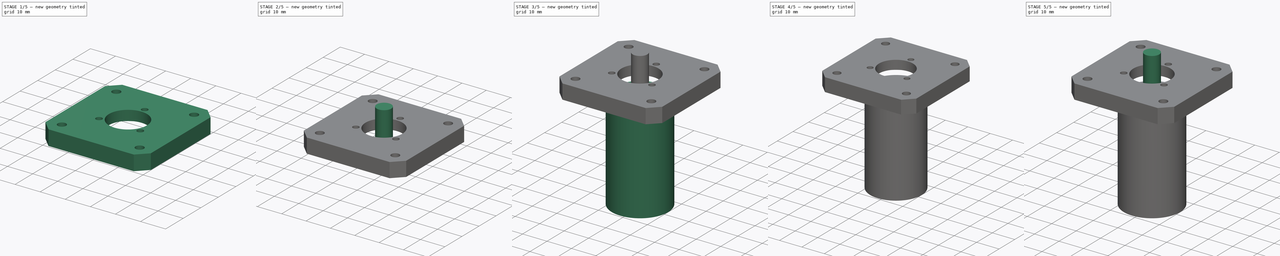
[diagram: build sequence overview — one tinted view per stage of 5, left to right]
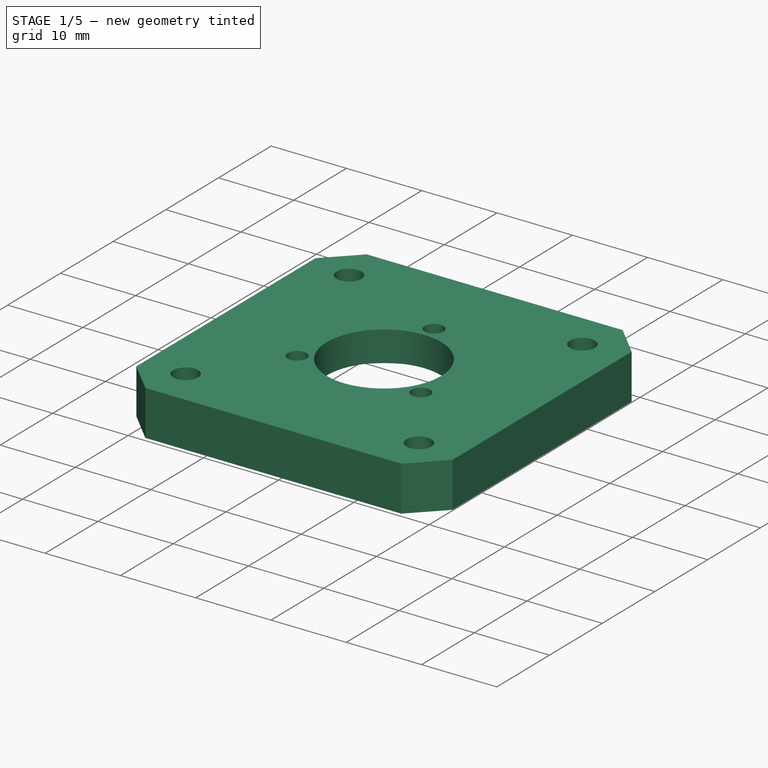
[diagram: stage 1 of 5 — iso view after this stage's code; geometry added in this stage tinted green]
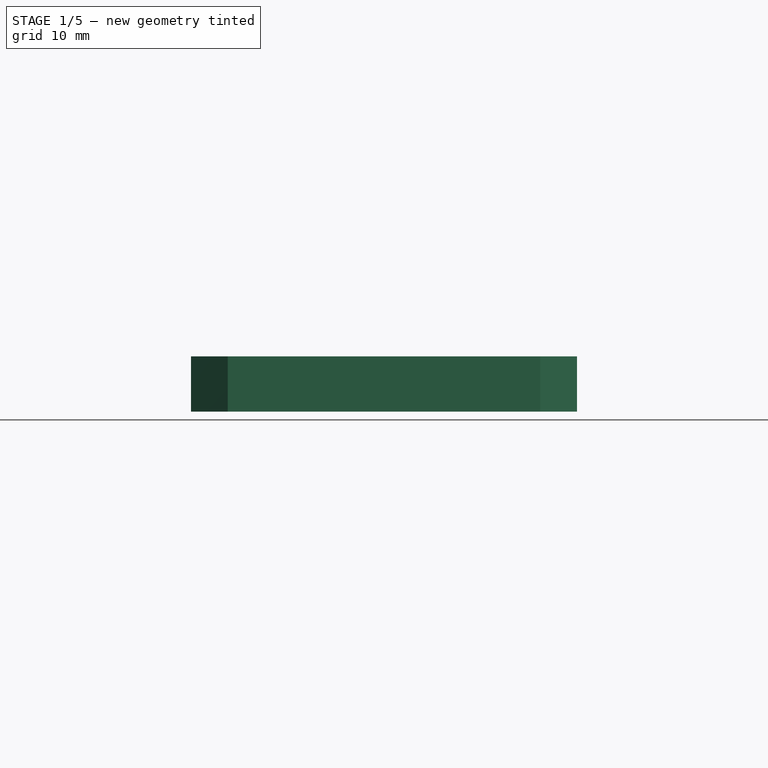
[diagram: stage 1 of 5 — front view after this stage's code; geometry added in this stage tinted green]
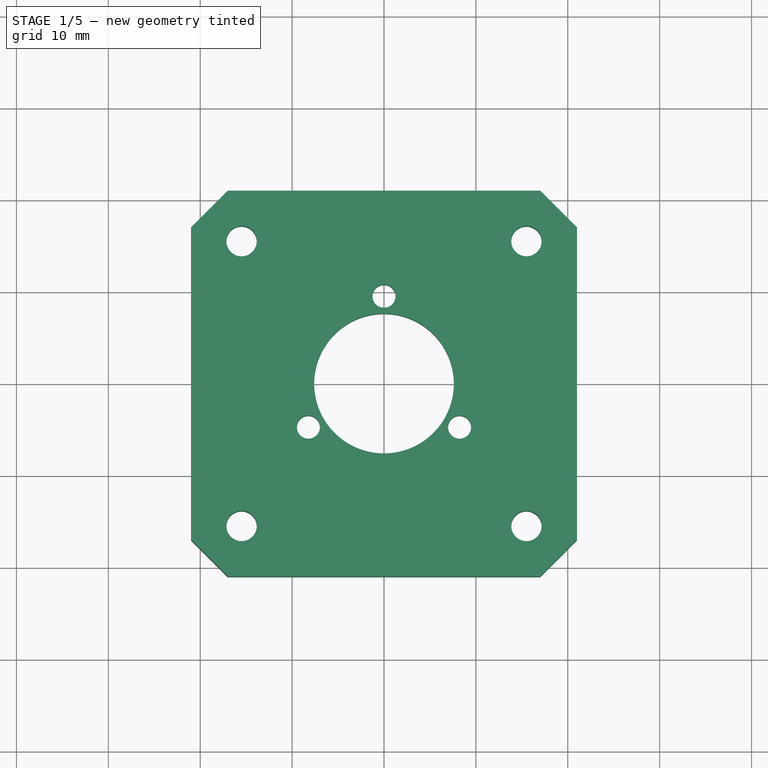
[diagram: stage 1 of 5 — top view after this stage's code; geometry added in this stage tinted green]
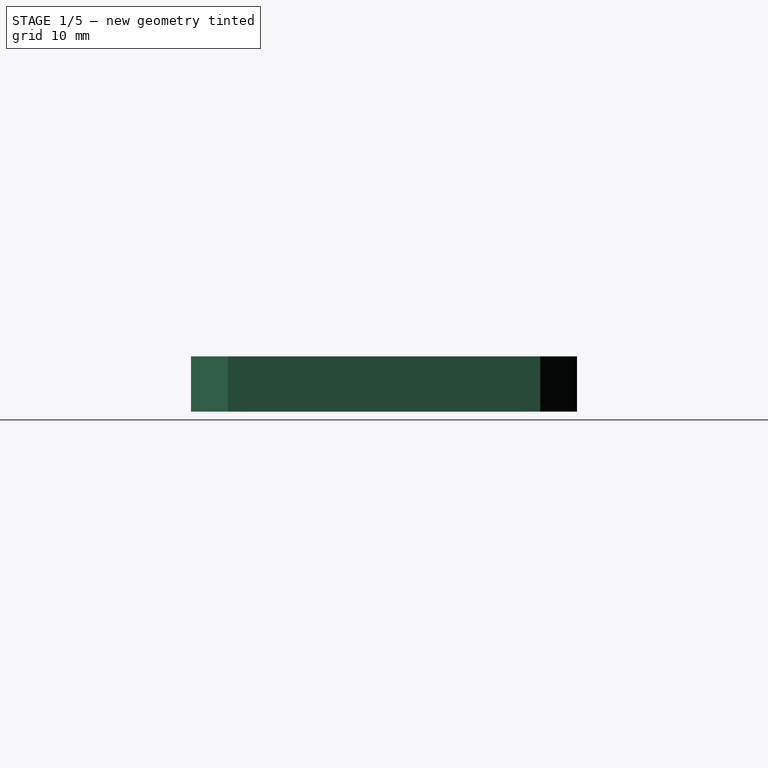
[diagram: stage 1 of 5 — right view after this stage's code; geometry added in this stage tinted green]
FCSTD DOCUMENT  (FreeCAD 0.16R6692 (Git))
Label: faulhaber
License: All rights reserved
LicenseURL: http://en.wikipedia.org/wiki/All_rights_reserved
objects: Sketcher::SketchObject×5, Part::Cylinder×3, PartDesign::Pocket×3, Part::FeaturePython×3, Part::Extrusion×2, Part::MultiFuse×1, Part::MultiCommon×1, Part::Cut×1, Part::Compound×1, Part::Feature×1
note: 24 computed .brp shape members not serialized (recipe doc carries the construction recipe); baked Part::Feature solids carry a one-line shape summary decoded from their .brp

FEATURE [Part::Feature] Compound001  label="Faulhaber"
  Placement = pos=(-3.72e-10,-3.7e-11,0) rot=(0,0,1;0rad)
  shape: bbox 23 x 23 x 56 mm, 14 faces, 2 solids (baked)
FEATURE [Part::FeaturePython] Clone057  label="Clone of SIRIUS_lite_remake040"  # WARN: FeaturePython — macro-defined, semantics opaque (R4)
  Placement = pos=(0,-257.5,235) rot=(-1,0,0;1.5708rad)
  Scale = (1,1,1)
FEATURE [Sketcher::SketchObject] Sketch002
  ExternalGeometry = -> [Clone057]
  Placement = pos=(0,-257.5,260.941) rot=(0,1,0;3.14159rad)
  Support = -> Clone057 [Face28]
  sketch-geometry (20):
    g0: Circle CenterX=279.912 CenterY=243.266 CenterZ=0 NormalX=0 NormalY=0 NormalZ=1 Radius=1.65
    g1: Circle CenterX=310.912 CenterY=243.266 CenterZ=0 NormalX=0 NormalY=0 NormalZ=1 Radius=1.65
    g2: Circle CenterX=310.912 CenterY=212.266 CenterZ=0 NormalX=0 NormalY=0 NormalZ=1 Radius=1.65
    g3: Circle CenterX=279.912 CenterY=212.266 CenterZ=0 NormalX=0 NormalY=0 NormalZ=1 Radius=1.65
    g4: Circle [constr] CenterX=295.412 CenterY=227.766 CenterZ=0 NormalX=0 NormalY=0 NormalZ=1 Radius=9.5
    g5: LineSegment [constr] StartX=295.412 StartY=227.766 StartZ=0 EndX=295.412 EndY=237.266 EndZ=0
    g6: LineSegment [constr] StartX=295.412 StartY=227.766 StartZ=0 EndX=287.185 EndY=223.016 EndZ=0
    g7: LineSegment [constr] StartX=295.412 StartY=227.766 StartZ=0 EndX=303.639 EndY=223.016 EndZ=0
    g8: Circle CenterX=295.412 CenterY=237.266 CenterZ=0 NormalX=0 NormalY=0 NormalZ=1 Radius=1.25
    g9: Circle CenterX=303.639 CenterY=223.016 CenterZ=0 NormalX=0 NormalY=0 NormalZ=1 Radius=1.25
    g10: Circle CenterX=287.185 CenterY=223.016 CenterZ=0 NormalX=0 NormalY=0 NormalZ=1 Radius=1.25
    g11: LineSegment StartX=278.412 StartY=248.766 StartZ=0 EndX=312.412 EndY=248.766 EndZ=0
    g12: LineSegment StartX=312.412 StartY=248.766 StartZ=0 EndX=316.412 EndY=244.766 EndZ=0
    g13: LineSegment StartX=316.412 StartY=244.766 StartZ=0 EndX=316.412 EndY=210.766 EndZ=0
    g14: LineSegment StartX=316.412 StartY=210.766 StartZ=0 EndX=312.412 EndY=206.766 EndZ=0
    g15: LineSegment StartX=312.412 StartY=206.766 StartZ=0 EndX=278.412 EndY=206.766 EndZ=0
    g16: LineSegment StartX=278.412 StartY=206.766 StartZ=0 EndX=274.412 EndY=210.766 EndZ=0
    g17: LineSegment StartX=274.412 StartY=210.766 StartZ=0 EndX=274.412 EndY=244.766 EndZ=0
    g18: LineSegment StartX=278.412 StartY=248.766 StartZ=0 EndX=274.412 EndY=244.766 EndZ=0
    g19: Circle CenterX=295.412 CenterY=227.766 CenterZ=0 NormalX=0 NormalY=0 NormalZ=1 Radius=7.6
  constraints (45):
    c: Coincident(g0,g-4)
    c: Coincident(g1,g-3)
    c: Coincident(g2,g-6)
    c: Coincident(g3,g-5)
    c: Radius(g3) = 1.65
    c: Equal(g3,g0)
    c: Equal(g3,g1)
    c: Equal(g3,g2)
    c: Coincident(g4,g-7)
    c: Coincident(g5,g4)
    c: PointOnObject(g5,g4)
    c: Coincident(g6,g4)
    c: PointOnObject(g6,g4)
    c: Coincident(g7,g4)
    c: PointOnObject(g7,g4)
    c: Radius(g4) = 9.5
    c: Coincident(g8,g5)
    c: Coincident(g9,g7)
    c: Coincident(g10,g6)
    c: Angle(g4,g6) = 1.0472
    c: Angle(g4,g7) = 1.0472
    c: Coincident(g-8,g11)
    c: Coincident(g11,g-10)
    c: Coincident(g11,g12)
    c: Coincident(g12,g-10)
    c: Coincident(g12,g13)
    c: Coincident(g13,g-9)
    c: Coincident(g13,g14)
    c: Coincident(g14,g-9)
    c: Coincident(g14,g15)
    c: Coincident(g15,g-11)
    c: Coincident(g15,g16)
    c: Coincident(g16,g-11)
    c: Coincident(g16,g17)
    c: Coincident(g17,g-8)
    c: Coincident(g18,g11)
    c: Coincident(g18,g17)
    c: Vertical(g5)
    c: Angle(g5,g6) = 2.0944
    c: Angle(g7,g5) = 2.0944
    c: Radius(g10) = 1.25
    c: Equal(g10,g8)
    c: Equal(g10,g9)
    c: Coincident(g19,g4)
    c: Radius(g19) = 7.6
FEATURE [Part::Extrusion] Extrude001
  Base = -> Sketch002
  Dir = (0,0,6)
  Placement = pos=(295.412,29.7342,-218) rot=(0,0,1;0rad)
  Solid = true
FEATURE [Sketcher::SketchObject] Sketch003
  ExternalGeometry = -> [Extrude001]
  Placement = pos=(295.412,29.7342,42.9412) rot=(1,0,0;3.14159rad)
  Support = -> Extrude001 [Face17]
  sketch-geometry (1):
    g0: Circle CenterX=-295.412 CenterY=29.7342 CenterZ=0 NormalX=0 NormalY=0 NormalZ=1 Radius=11.8
  constraints (2):
    c: Coincident(g0,g-3)
    c: Radius(g0) = 11.8
FEATURE [PartDesign::Pocket] Pocket001
  Length = 2
  Placement = pos=(295.412,29.7342,-218) rot=(0,0,1;0rad)
  Sketch = -> Sketch003
  Type = 0
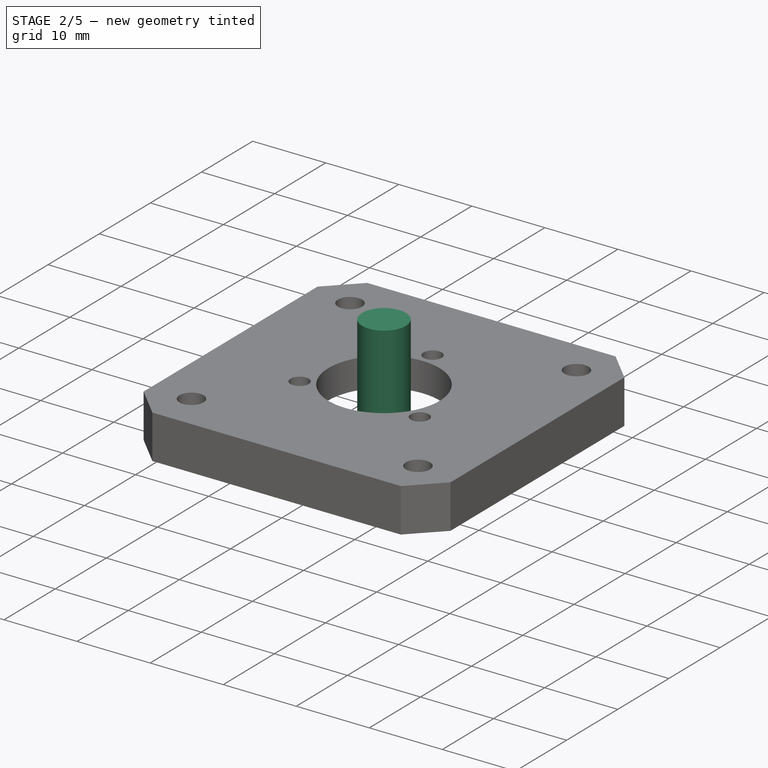
[diagram: stage 2 of 5 — iso view after this stage's code; geometry added in this stage tinted green]
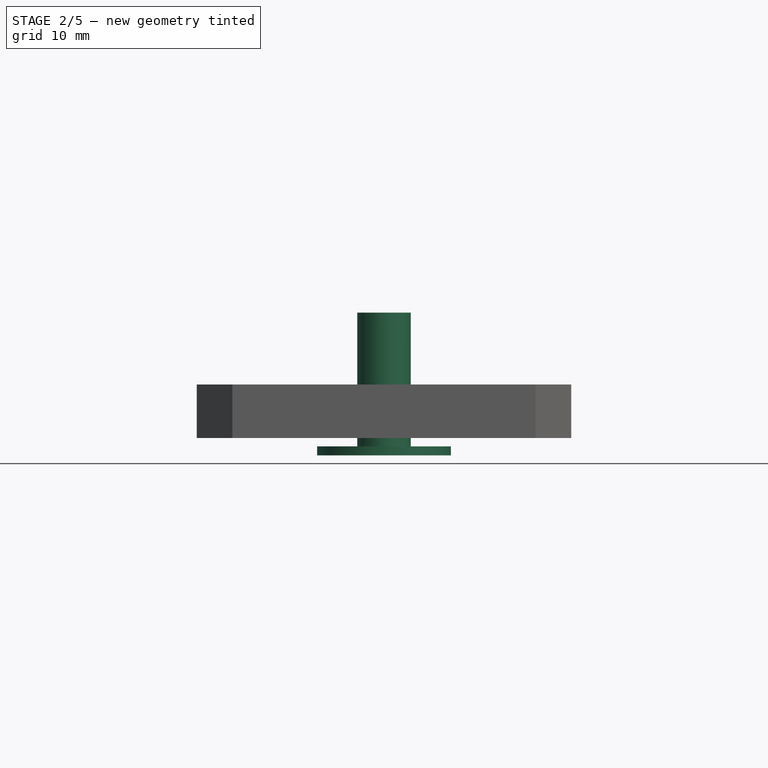
[diagram: stage 2 of 5 — front view after this stage's code; geometry added in this stage tinted green]
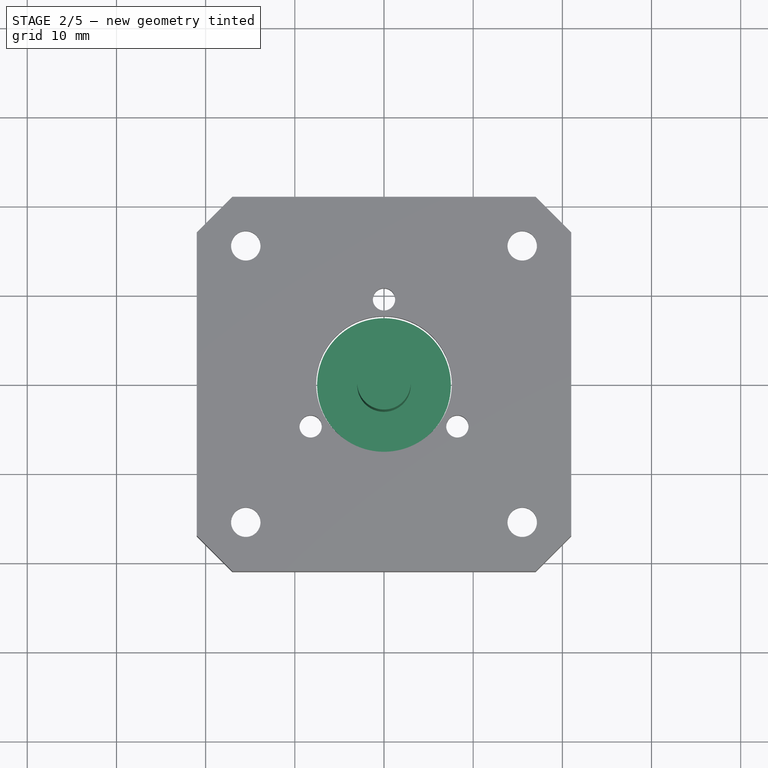
[diagram: stage 2 of 5 — top view after this stage's code; geometry added in this stage tinted green]
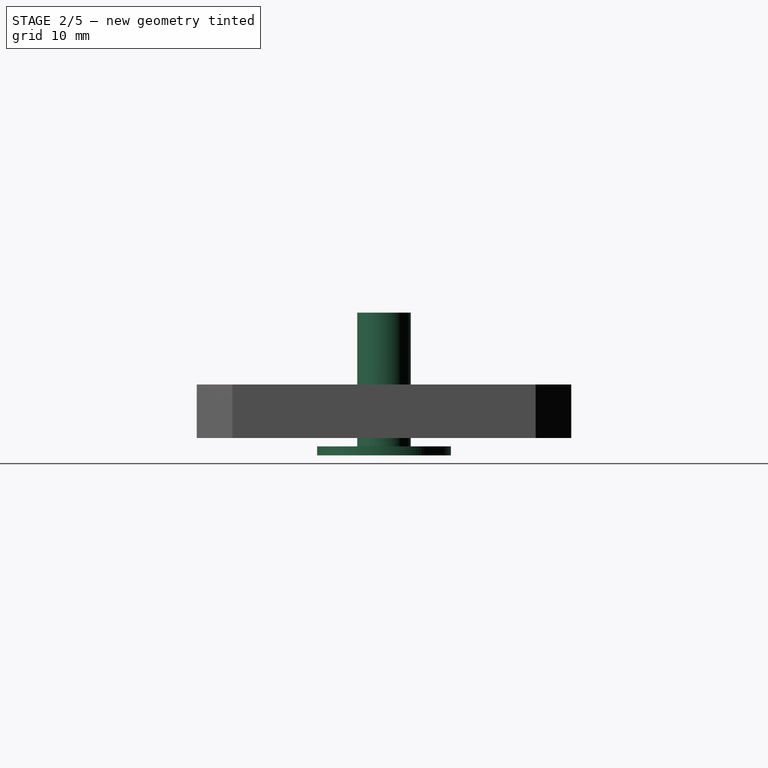
[diagram: stage 2 of 5 — right view after this stage's code; geometry added in this stage tinted green]
FEATURE [Part::Cylinder] Cylinder001
  Angle = 360
  Height = 1
  Placement = pos=(0,0,41) rot=(0,0,1;0rad)
  Radius = 7.5
FEATURE [Part::Cylinder] Cylinder002
  Angle = 360
  Height = 15
  Placement = pos=(0,0,42) rot=(0,0,1;0rad)
  Radius = 3
FEATURE [Sketcher::SketchObject] Sketch004
  ExternalGeometry = -> [Pocket001]
  Placement = pos=(295.412,29.7342,42.9412) rot=(1,0,0;3.14159rad)
  Support = -> Pocket001 [Face4]
  sketch-geometry (28):
    g0: LineSegment StartX=-313.812 StartY=43.5598 StartZ=0 EndX=-310.912 EndY=41.8855 EndZ=0
    g1: LineSegment StartX=-310.912 StartY=41.8855 StartZ=0 EndX=-308.012 EndY=43.5598 EndZ=0
    g2: LineSegment StartX=-308.012 StartY=43.5598 StartZ=0 EndX=-308.012 EndY=46.9085 EndZ=0
    g3: LineSegment StartX=-308.012 StartY=46.9085 StartZ=0 EndX=-310.912 EndY=48.5828 EndZ=0
    g4: LineSegment StartX=-310.912 StartY=48.5828 StartZ=0 EndX=-313.812 EndY=46.9085 EndZ=0
    g5: LineSegment StartX=-313.812 StartY=46.9085 StartZ=0 EndX=-313.812 EndY=43.5598 EndZ=0
    g6: Circle [constr] CenterX=-310.912 CenterY=45.2342 CenterZ=0 NormalX=0 NormalY=0 NormalZ=1 Radius=3.34863
    g7: LineSegment StartX=-279.912 StartY=41.8855 StartZ=0 EndX=-277.012 EndY=43.5598 EndZ=0
    g8: LineSegment StartX=-277.012 StartY=43.5598 StartZ=0 EndX=-277.012 EndY=46.9085 EndZ=0
    g9: LineSegment StartX=-277.012 StartY=46.9085 StartZ=0 EndX=-279.912 EndY=48.5828 EndZ=0
    g10: LineSegment StartX=-279.912 StartY=48.5828 StartZ=0 EndX=-282.812 EndY=46.9085 EndZ=0
    g11: LineSegment StartX=-282.812 StartY=46.9085 StartZ=0 EndX=-282.812 EndY=43.5598 EndZ=0
    g12: LineSegment StartX=-282.812 StartY=43.5598 StartZ=0 EndX=-279.912 EndY=41.8855 EndZ=0
    g13: Circle [constr] CenterX=-279.912 CenterY=45.2342 CenterZ=0 NormalX=0 NormalY=0 NormalZ=1 Radius=3.34863
    g14: LineSegment StartX=-279.912 StartY=17.5828 StartZ=0 EndX=-282.812 EndY=15.9085 EndZ=0
    g15: LineSegment StartX=-282.812 StartY=15.9085 StartZ=0 EndX=-282.812 EndY=12.5598 EndZ=0
    g16: LineSegment StartX=-282.812 StartY=12.5598 StartZ=0 EndX=-279.912 EndY=10.8855 EndZ=0
    g17: LineSegment StartX=-279.912 StartY=10.8855 StartZ=0 EndX=-277.012 EndY=12.5598 EndZ=0
    g18: LineSegment StartX=-277.012 StartY=12.5598 StartZ=0 EndX=-277.012 EndY=15.9085 EndZ=0
    g19: LineSegment StartX=-277.012 StartY=15.9085 StartZ=0 EndX=-279.912 EndY=17.5828 EndZ=0
    g20: Circle [constr] CenterX=-279.912 CenterY=14.2342 CenterZ=0 NormalX=0 NormalY=0 NormalZ=1 Radius=3.34863
    g21: LineSegment StartX=-310.912 StartY=17.5828 StartZ=0 EndX=-313.812 EndY=15.9085 EndZ=0
    g22: LineSegment StartX=-313.812 StartY=15.9085 StartZ=0 EndX=-313.812 EndY=12.5598 EndZ=0
    g23: LineSegment StartX=-313.812 StartY=12.5598 StartZ=0 EndX=-310.912 EndY=10.8855 EndZ=0
    g24: LineSegment StartX=-310.912 StartY=10.8855 StartZ=0 EndX=-308.012 EndY=12.5598 EndZ=0
    g25: LineSegment StartX=-308.012 StartY=12.5598 StartZ=0 EndX=-308.012 EndY=15.9085 EndZ=0
    g26: LineSegment StartX=-308.012 StartY=15.9085 StartZ=0 EndX=-310.912 EndY=17.5828 EndZ=0
    g27: Circle [constr] CenterX=-310.912 CenterY=14.2342 CenterZ=0 NormalX=0 NormalY=0 NormalZ=1 Radius=3.34863
  constraints (64):
    c: Coincident(g0,g1)
    c: Coincident(g1,g2)
    c: Coincident(g2,g3)
    c: Coincident(g3,g4)
    c: Coincident(g4,g5)
    c: Coincident(g5,g0)
    c: Equal(g0, g1-g5) x5
    c: PointOnObject(g0,g6)
    c: PointOnObject(g1,g6)
    c: PointOnObject(g2,g6)
    c: PointOnObject(g3,g6)
    c: PointOnObject(g4,g6)
    c: PointOnObject(g5,g6)
    c: Coincident(g6,g-3)
    c: Vertical(g5)
    c: Coincident(g7,g8)
    c: Coincident(g8,g9)
    c: Coincident(g9,g10)
    c: Coincident(g10,g11)
    c: Coincident(g11,g12)
    c: Coincident(g12,g7)
    c: Equal(g7, g8-g12) x5
    c: PointOnObject(g7,g13)
    c: PointOnObject(g8,g13)
    c: PointOnObject(g9,g13)
    c: PointOnObject(g10,g13)
    c: PointOnObject(g11,g13)
    c: PointOnObject(g12,g13)
    c: Coincident(g13,g-4)
    c: Coincident(g14,g15)
    c: Coincident(g15,g16)
    c: Coincident(g16,g17)
    c: Coincident(g17,g18)
    c: Coincident(g18,g19)
    c: Coincident(g19,g14)
    c: Equal(g14, g15-g19) x5
    c: PointOnObject(g14,g20)
    c: PointOnObject(g15,g20)
    c: PointOnObject(g16,g20)
    c: PointOnObject(g17,g20)
    c: PointOnObject(g18,g20)
    c: PointOnObject(g19,g20)
    c: Coincident(g20,g-5)
    c: Coincident(g21,g22)
    c: Coincident(g22,g23)
    c: Coincident(g23,g24)
    c: Coincident(g24,g25)
    c: Coincident(g25,g26)
    c: Coincident(g26,g21)
    c: Equal(g21, g22-g26) x5
    c: PointOnObject(g21,g27)
    c: PointOnObject(g22,g27)
    c: PointOnObject(g23,g27)
    c: PointOnObject(g24,g27)
    c: PointOnObject(g25,g27)
    c: PointOnObject(g26,g27)
    c: Coincident(g27,g-6)
    c: Equal(g13,g6)
    c: Equal(g6,g27)
    c: Equal(g27,g20)
    c: Vertical(g8)
    c: Vertical(g18)
    c: Vertical(g25)
    c: Distance(g21,g25) = 5.8
FEATURE [PartDesign::Pocket] Pocket002
  Length = 3.5
  Placement = pos=(295.412,29.7342,-218) rot=(0,0,1;0rad)
  Sketch = -> Sketch004
  Type = 0
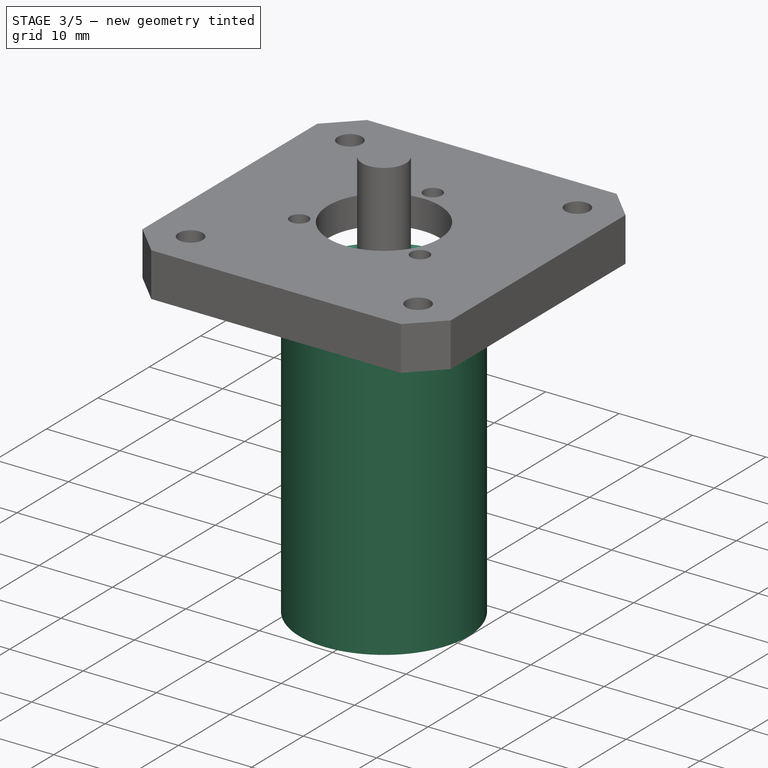
[diagram: stage 3 of 5 — iso view after this stage's code; geometry added in this stage tinted green]
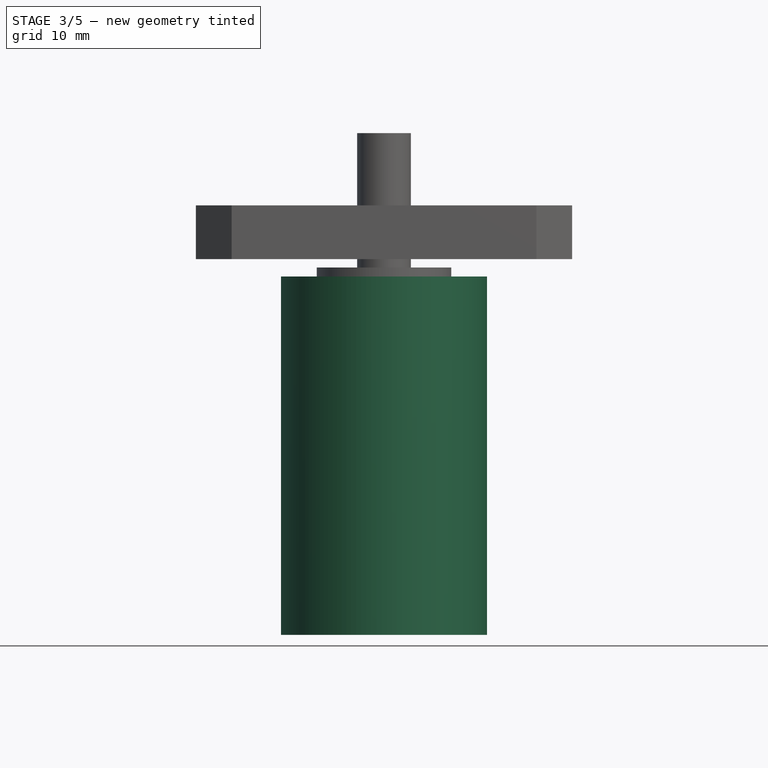
[diagram: stage 3 of 5 — front view after this stage's code; geometry added in this stage tinted green]
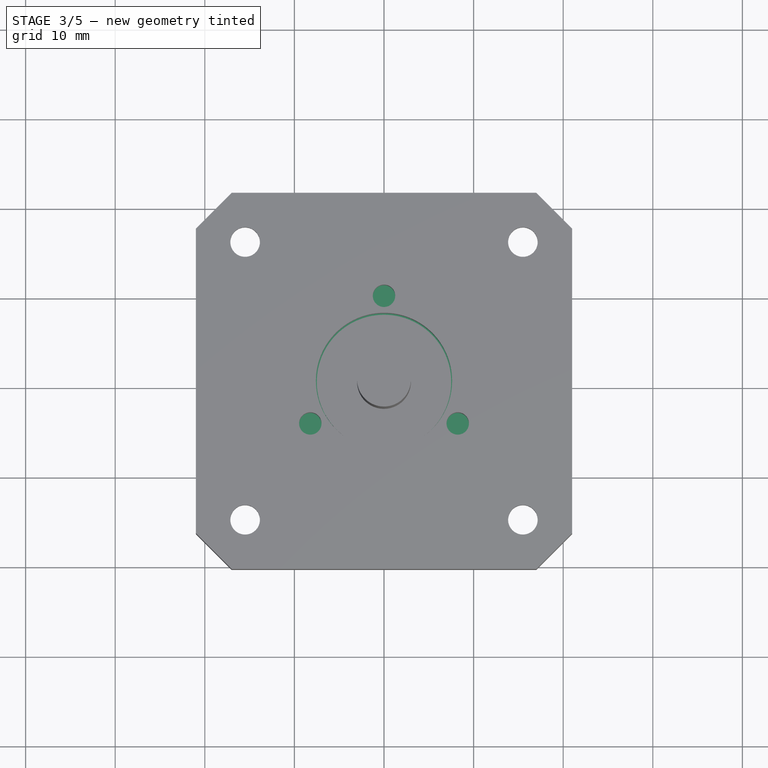
[diagram: stage 3 of 5 — top view after this stage's code; geometry added in this stage tinted green]
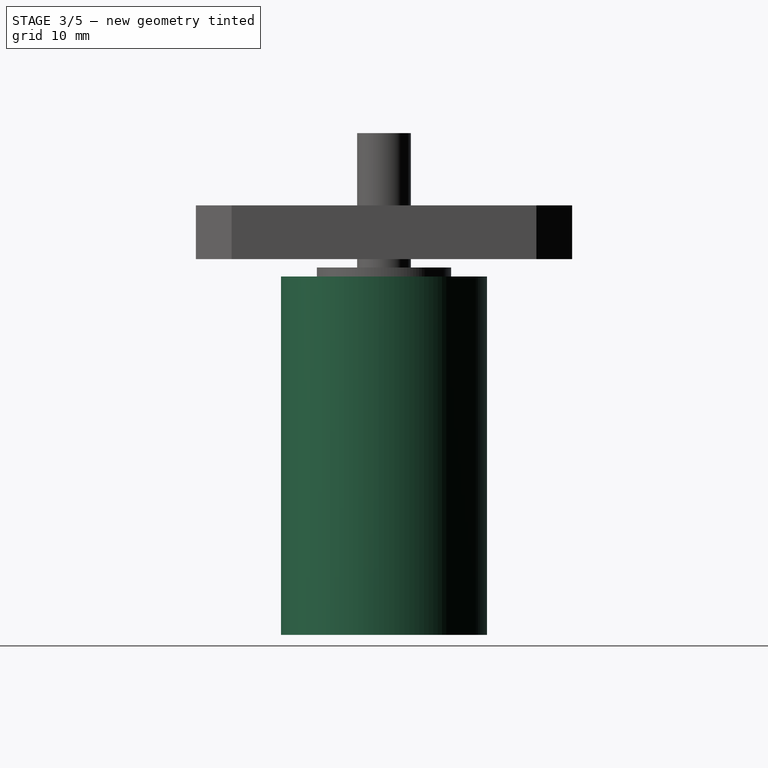
[diagram: stage 3 of 5 — right view after this stage's code; geometry added in this stage tinted green]
FEATURE [Part::Cylinder] Cylinder
  Angle = 360
  Height = 40
  Placement = pos=(0,0,1) rot=(0,0,1;0rad)
  Radius = 11.5
FEATURE [Part::MultiFuse] Fusion
  Shapes = -> [Cylinder,Cylinder002,Cylinder001]
FEATURE [Sketcher::SketchObject] Sketch
  ExternalGeometry = -> [Fusion]
  Placement = pos=(0,0,41) rot=(0,0,1;0rad)
  Support = -> Fusion [Face5]
  sketch-geometry (7):
    g0: Circle [constr] CenterX=0 CenterY=0 CenterZ=0 NormalX=0 NormalY=0 NormalZ=1 Radius=9.5
    g1: Circle CenterX=8.22724 CenterY=4.75 CenterZ=0 NormalX=0 NormalY=0 NormalZ=1 Radius=1
    g2: Circle CenterX=-8.22724 CenterY=4.75 CenterZ=0 NormalX=0 NormalY=0 NormalZ=1 Radius=1
    g3: Circle CenterX=0 CenterY=-9.5 CenterZ=0 NormalX=0 NormalY=0 NormalZ=1 Radius=1
    g4: LineSegment [constr] StartX=-8.22724 StartY=4.75 StartZ=0 EndX=0 EndY=0 EndZ=0
    g5: LineSegment [constr] StartX=8.22724 StartY=4.75 StartZ=0 EndX=0 EndY=0 EndZ=0
    g6: LineSegment [constr] StartX=0 StartY=0 StartZ=0 EndX=0 EndY=-9.5 EndZ=0
  constraints (17):
    c: Coincident(g0,g-1)
    c: Radius(g0) = 9.5
    c: PointOnObject(g1,g0)
    c: PointOnObject(g2,g0)
    c: PointOnObject(g3,g0)
    c: Radius(g3) = 1
    c: Equal(g3,g2)
    c: Equal(g3,g1)
    c: Coincident(g4,g2)
    c: Coincident(g4,g-1)
    c: Coincident(g5,g1)
    c: Coincident(g5,g-1)
    c: Coincident(g6,g-1)
    c: Coincident(g6,g3)
    c: Angle(g4,g6) = 2.0944
    c: Angle(g6,g5) = 2.0944
    c: PointOnObject(g3,g-2)
FEATURE [PartDesign::Pocket] Pocket
  Length = 4
  Sketch = -> Sketch
  Type = 0
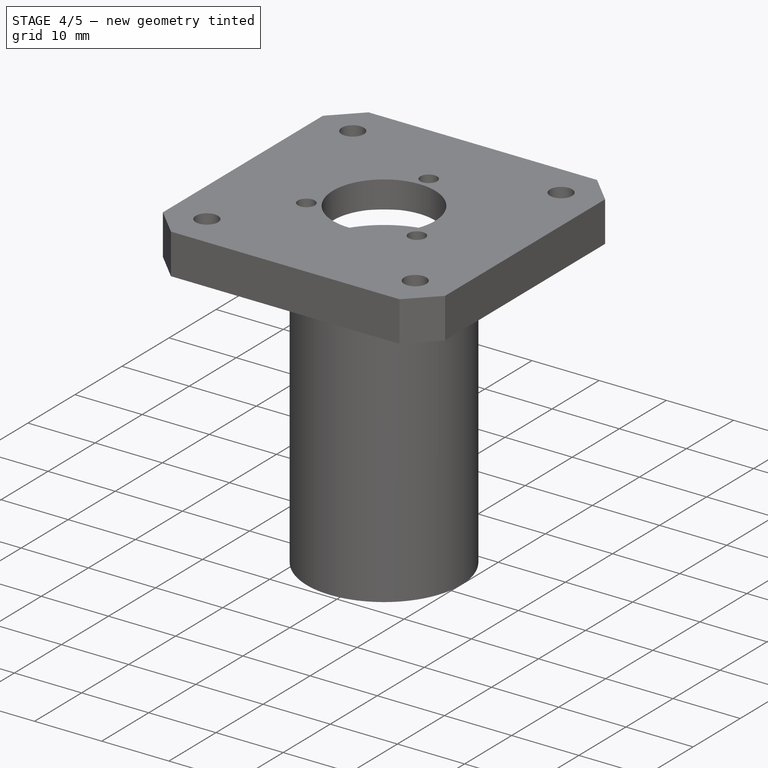
[diagram: stage 4 of 5 — iso view after this stage's code; geometry added in this stage tinted green]
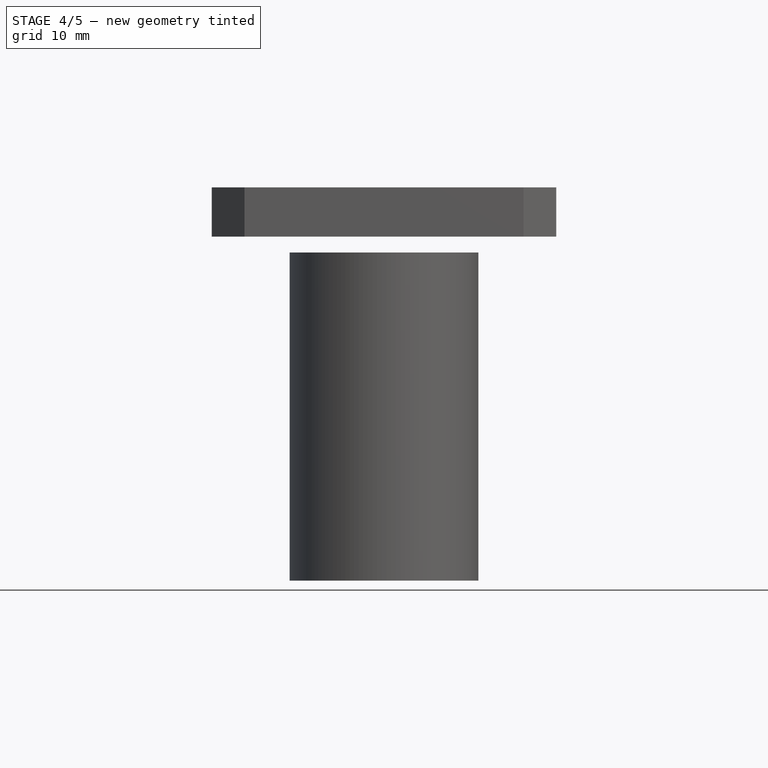
[diagram: stage 4 of 5 — front view after this stage's code; geometry added in this stage tinted green]
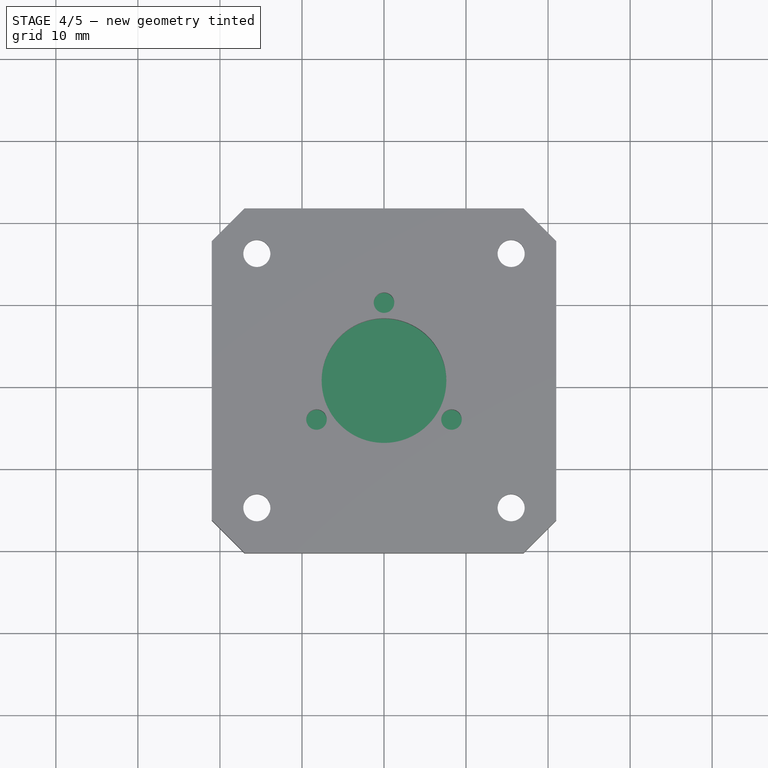
[diagram: stage 4 of 5 — top view after this stage's code; geometry added in this stage tinted green]
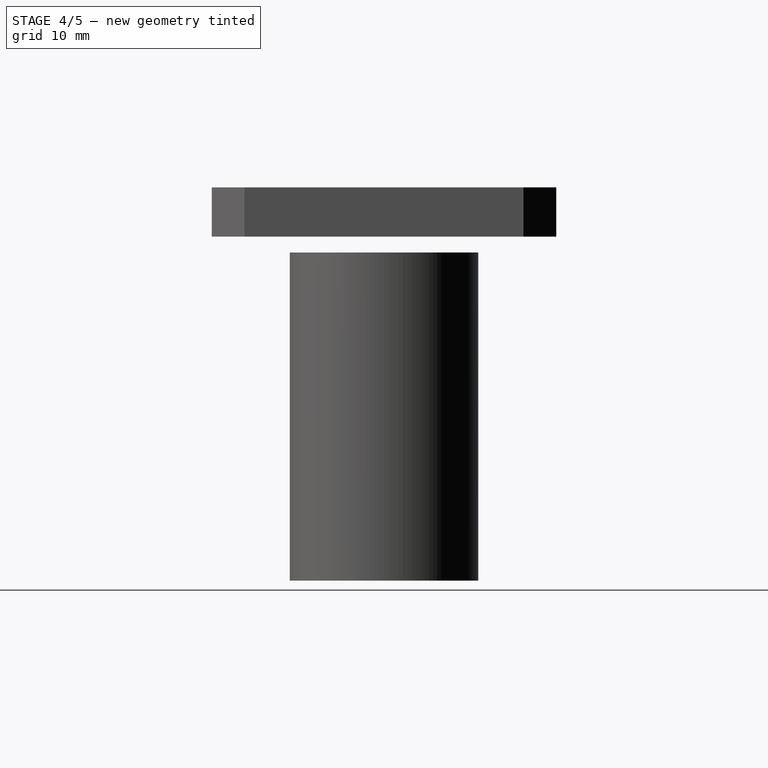
[diagram: stage 4 of 5 — right view after this stage's code; geometry added in this stage tinted green]
FEATURE [Sketcher::SketchObject] Sketch001
  Placement = pos=(0,0,41) rot=(0,0,1;0rad)
  Support = -> Pocket [Face5]
  sketch-geometry (1):
    g0: Circle CenterX=0 CenterY=0 CenterZ=0 NormalX=0 NormalY=0 NormalZ=1 Radius=23.3462
  constraints (1):
    c: Coincident(g0,g-1)
FEATURE [Part::Extrusion] Extrude
  Base = -> Sketch001
  Dir = (0,0,23)
  Solid = true
FEATURE [Part::FeaturePython] Clone001  label="Clone of Extrude"  # Draft clone (typed FeaturePython)
  Objects = -> [Extrude]
  Scale = (1,1,1)
FEATURE [Part::Cut] Cut
  Base = -> Pocket
  Tool = -> Clone001
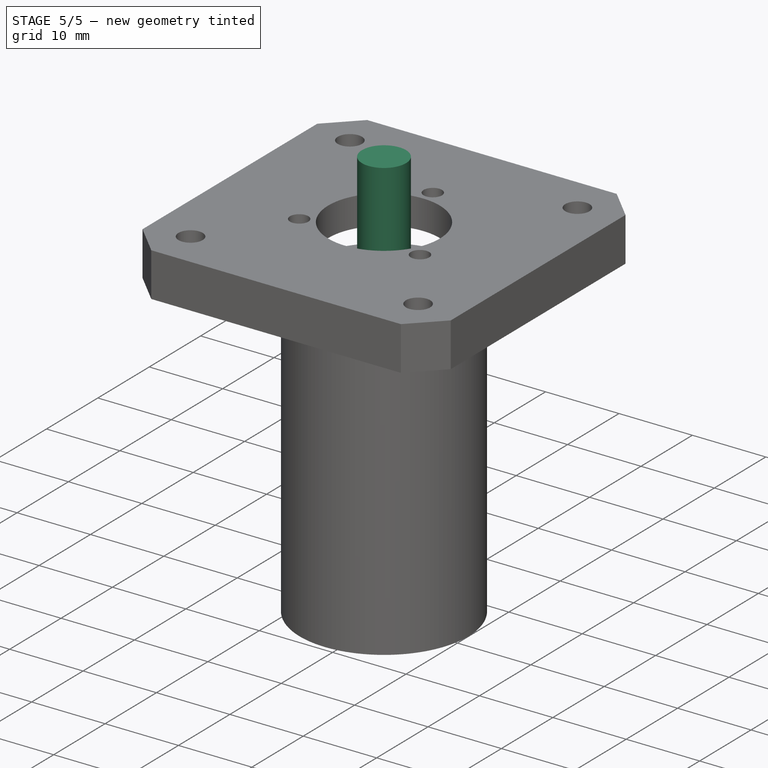
[diagram: stage 5 of 5 — iso view after this stage's code; geometry added in this stage tinted green]
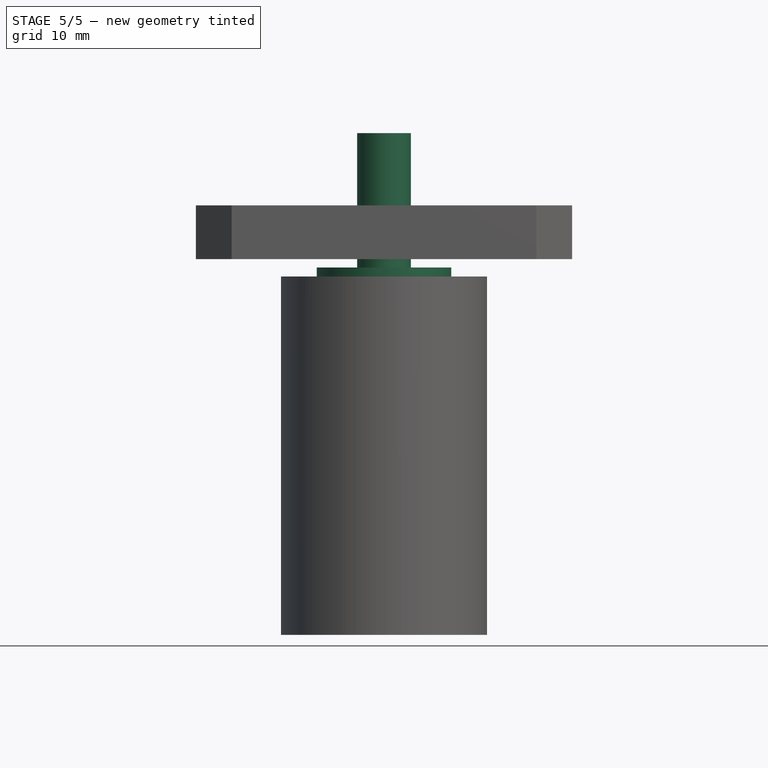
[diagram: stage 5 of 5 — front view after this stage's code; geometry added in this stage tinted green]
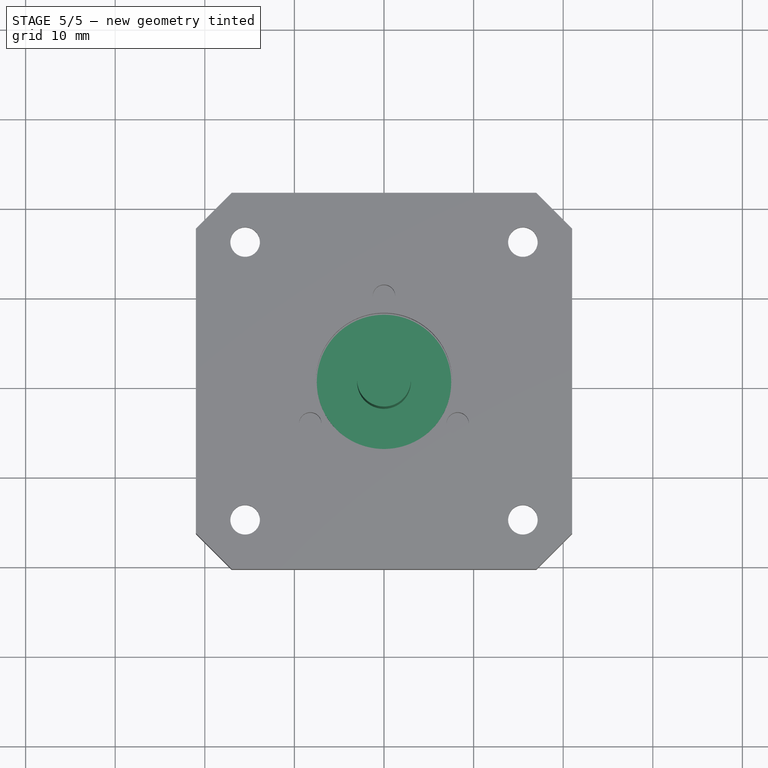
[diagram: stage 5 of 5 — top view after this stage's code; geometry added in this stage tinted green]
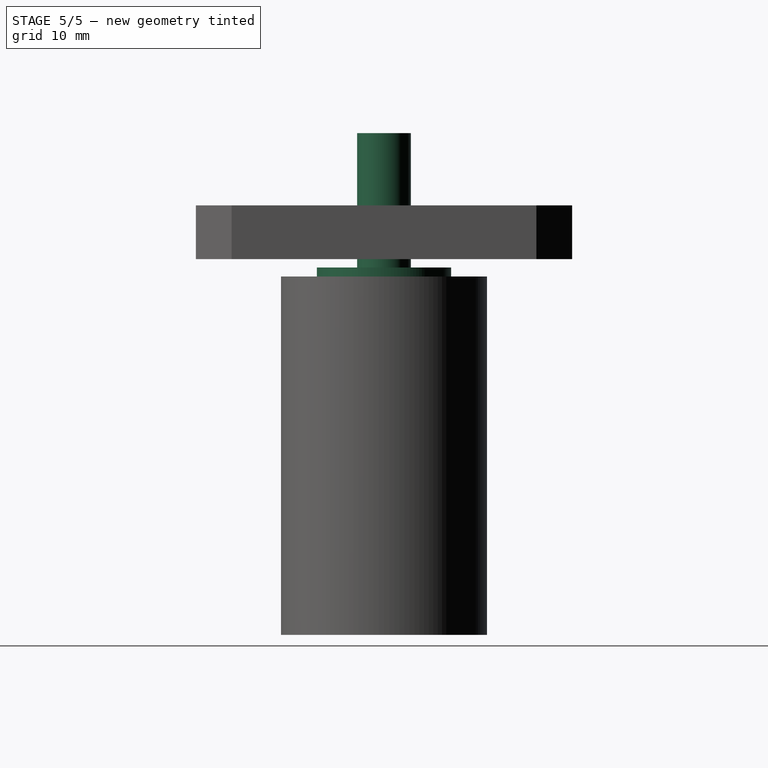
[diagram: stage 5 of 5 — right view after this stage's code; geometry added in this stage tinted green]
FEATURE [Part::FeaturePython] Clone  label="Clone of Pocket"  # Draft clone (typed FeaturePython)
  Objects = -> [Pocket]
  Scale = (1,1,1)
FEATURE [Part::MultiCommon] Common
  Shapes = -> [Extrude,Clone]
FEATURE [Part::Compound] Compound
  Links = -> [Common,Cut]
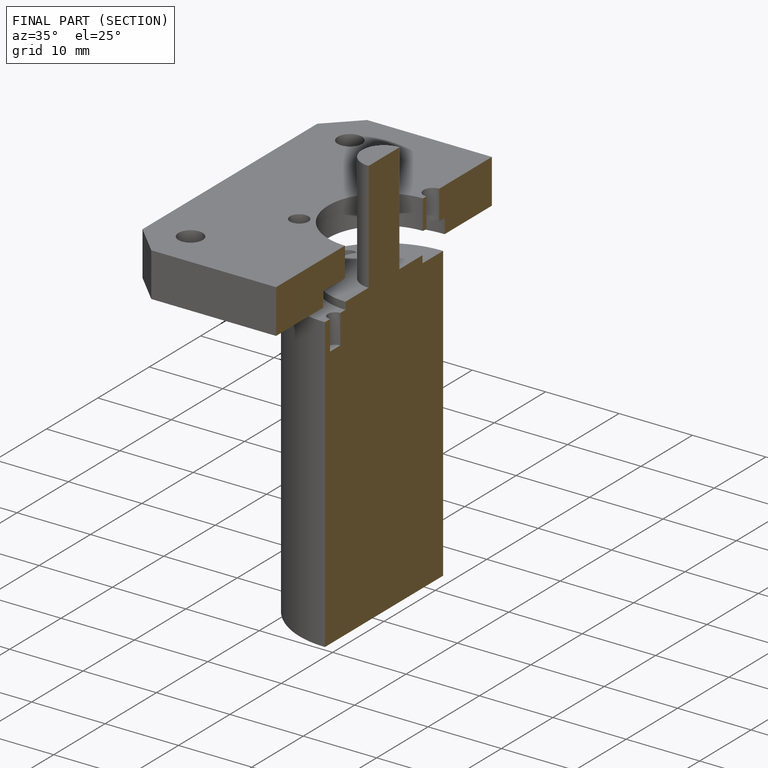
[diagram: finished part — half-section view (interior)]
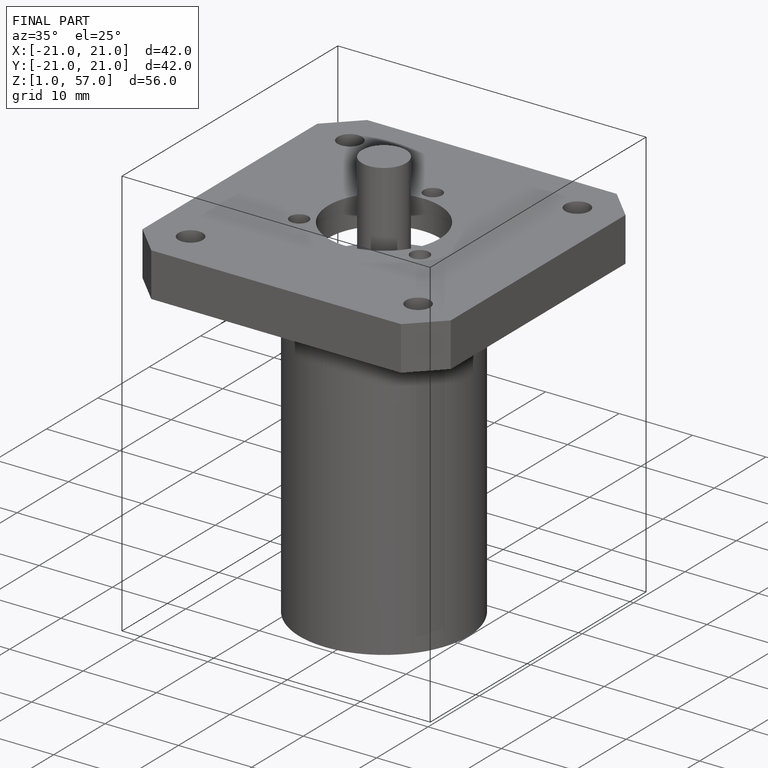
[diagram: finished part — iso view with bounding-box wireframe]
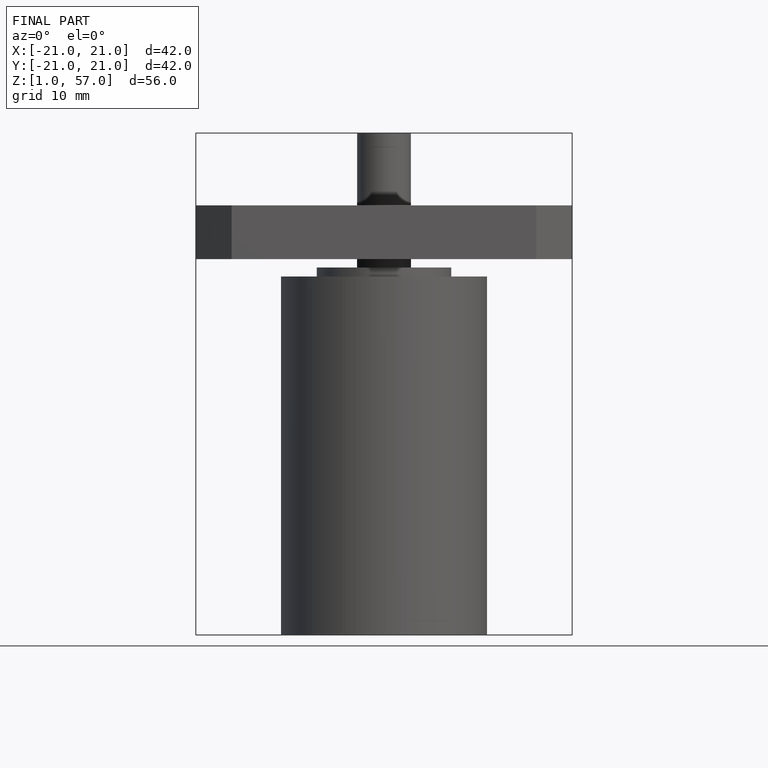
[diagram: finished part — front view with bounding-box wireframe]
